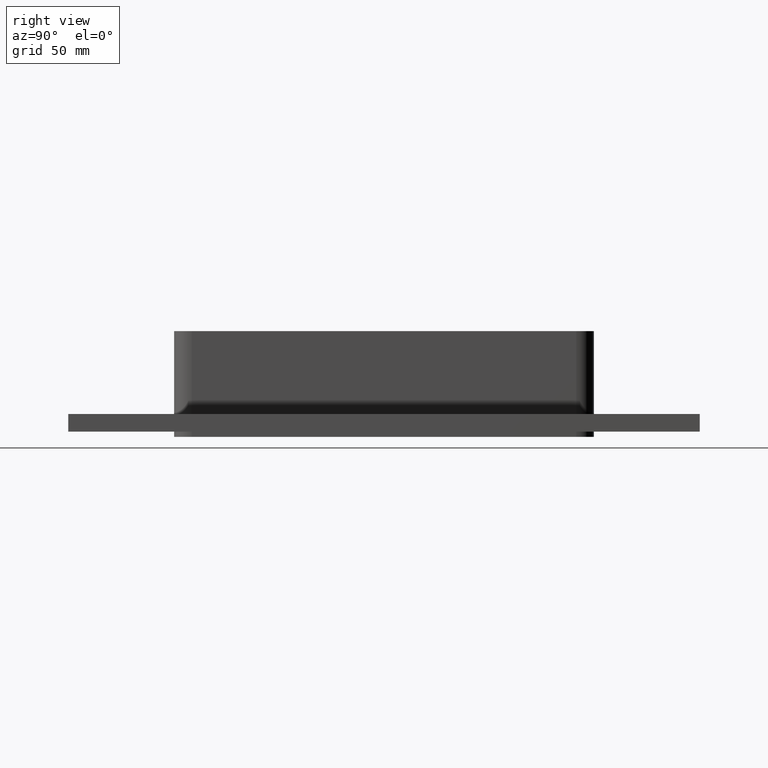
[diagram: clean part render]
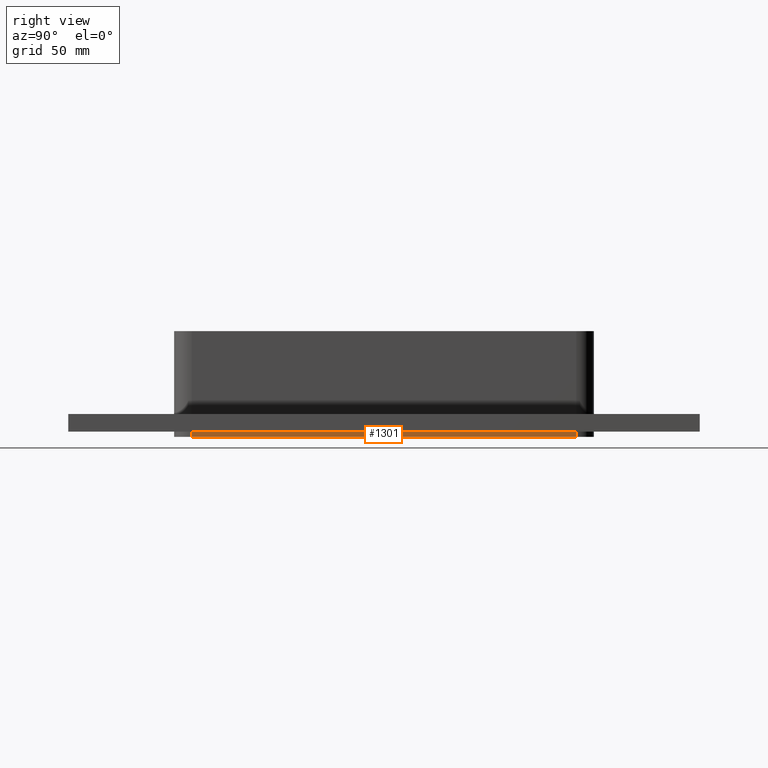
[diagram: same view with one face highlighted and labeled with its STEP entity id]
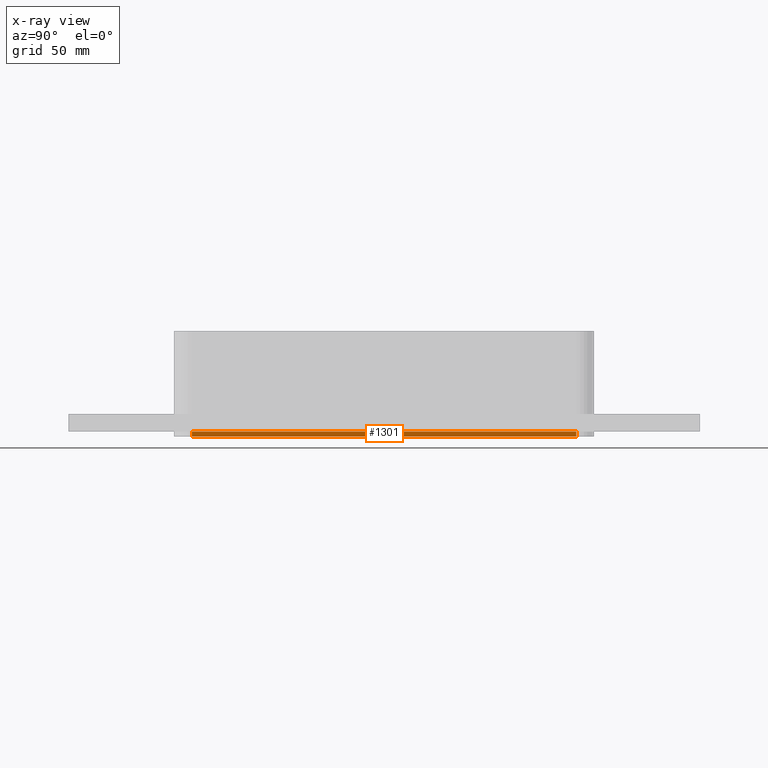
[diagram: x-ray of the same camera — body ghosted, the highlighted face saturated]
A machine part, right view. The second image highlights one B-rep face of the part: STEP entity #1301.
The next image is the same camera in x-ray: the body ghosted, the highlighted face saturated — about 0% of this face is hidden behind the body in this view.
In plain terms, the highlighted planar face has unit normal (1, 0, 0).
Its self-contained STEP definition (entity closure, byte-faithful):
#695=CARTESIAN_POINT('',(40.249999999999915,109.00000000000003,-27.0));
#696=VERTEX_POINT('',#695);
#746=CARTESIAN_POINT('',(40.250000000000057,-109.00000000000003,-27.0));
#747=VERTEX_POINT('',#746);
#755=CARTESIAN_POINT('',(40.249999999999922,109.00000000000004,-27.0));
#756=DIRECTION('',(0.0,-1.0,0.0));
#757=VECTOR('',#756,218.00000000000006);
#758=LINE('',#755,#757);
#759=EDGE_CURVE('',#696,#747,#758,.T.);
#778=CARTESIAN_POINT('',(40.249999999999986,-108.99999999999984,-30.0));
#779=VERTEX_POINT('',#778);
#787=CARTESIAN_POINT('',(40.249999999999986,-108.99999999999984,-30.0));
#788=DIRECTION('',(0.0,0.0,1.0));
#789=VECTOR('',#788,3.0);
#790=LINE('',#787,#789);
#791=EDGE_CURVE('',#779,#747,#790,.T.);
#1017=CARTESIAN_POINT('',(40.249999999999915,109.00000000000013,-30.0));
#1018=VERTEX_POINT('',#1017);
#1026=CARTESIAN_POINT('',(40.249999999999915,109.00000000000013,-30.0));
#1027=DIRECTION('',(0.0,-1.0,0.0));
#1028=VECTOR('',#1027,217.99999999999997);
#1029=LINE('',#1026,#1028);
#1030=EDGE_CURVE('',#1018,#779,#1029,.T.);
#1166=CARTESIAN_POINT('',(40.249999999999915,109.00000000000013,-27.0));
#1167=DIRECTION('',(0.0,0.0,-1.0));
#1168=VECTOR('',#1167,3.0);
#1169=LINE('',#1166,#1168);
#1170=EDGE_CURVE('',#696,#1018,#1169,.T.);
#1290=CARTESIAN_POINT('',(40.249999999999986,-118.99999999999984,0.0));
#1291=DIRECTION('',(1.0,0.0,0.0));
#1292=DIRECTION('',(0.0,1.0,0.0));
#1293=AXIS2_PLACEMENT_3D('',#1290,#1291,#1292);
#1294=PLANE('',#1293);
#1295=ORIENTED_EDGE('',*,*,#759,.T.);
#1296=ORIENTED_EDGE('',*,*,#791,.F.);
#1297=ORIENTED_EDGE('',*,*,#1030,.F.);
#1298=ORIENTED_EDGE('',*,*,#1170,.F.);
#1299=EDGE_LOOP('',(#1295,#1296,#1297,#1298));
#1300=FACE_OUTER_BOUND('',#1299,.T.);
#1301=ADVANCED_FACE('',(#1300),#1294,.T.);